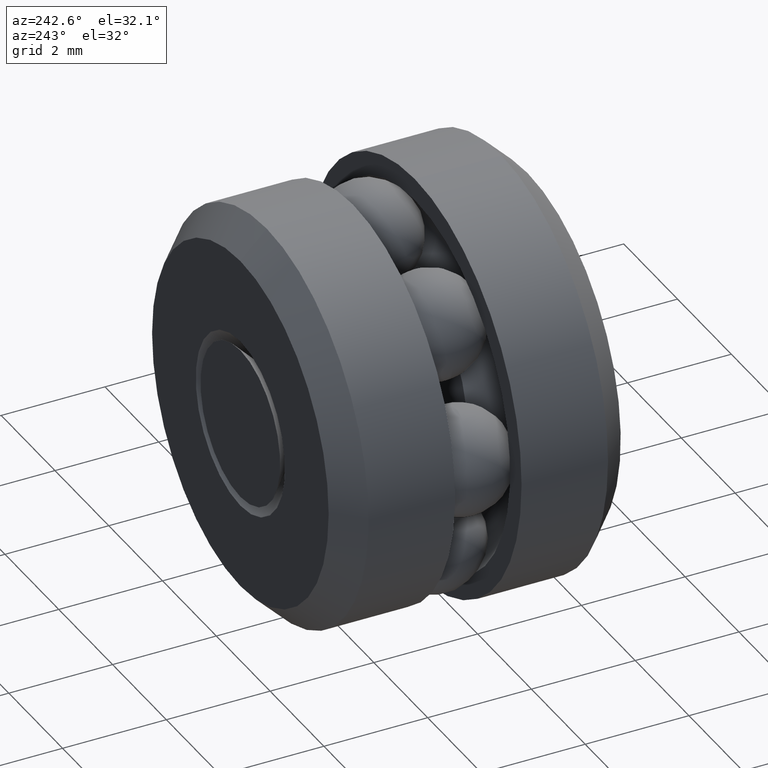
[diagram: clean part render]
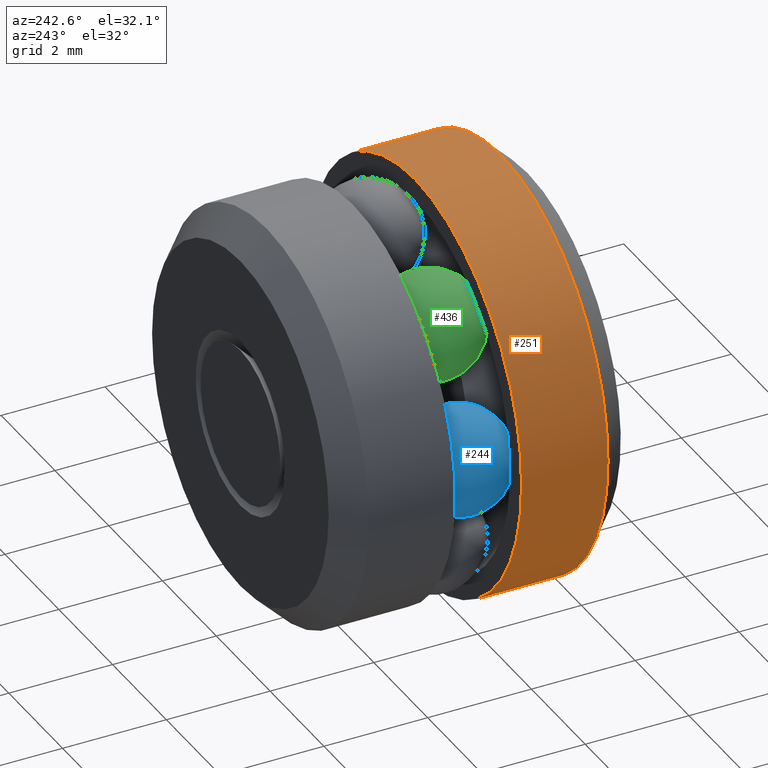
[diagram: same view with three faces highlighted in distinct colors, each labeled with its STEP entity id]
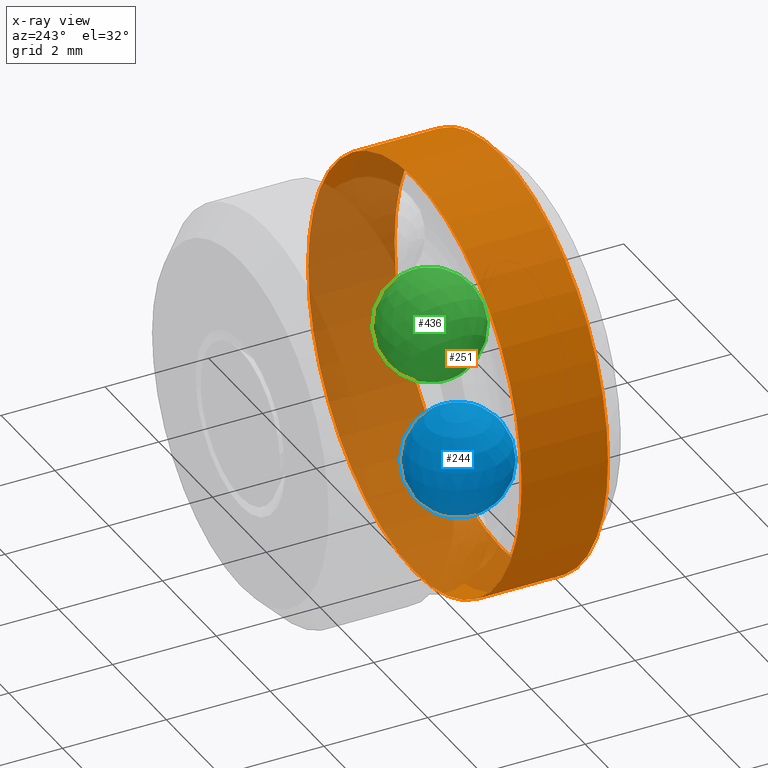
[diagram: x-ray of the same camera — body ghosted, the three highlighted faces saturated]
A machine part, auxiliary view with three faces highlighted in distinct colors.
The next image is the same camera in x-ray (body ghosted, the three faces saturated) — at least one of them is partly hidden behind the body in this view.
Their STEP definitions:

[orange] entity #251 — the highlighted cylindrical surface (bore or boss wall) has radius 3.9688 mm, axis along (-0, 1, -0).
#33 = ORIENTED_EDGE ( 'NONE', *, *, #284, .F. ) ;
#76 = CIRCLE ( 'NONE', #429, 0.1562500000000000000 ) ;
#77 = DIRECTION ( 'NONE',  ( -0.0000000000000000000, 1.000000000000000000, -0.0000000000000000000 ) ) ;
#83 = CARTESIAN_POINT ( 'NONE',  ( 0.0000000000000000000, 0.02000000000000018400, 0.1562500000000000000 ) ) ;
#86 = DIRECTION ( 'NONE',  ( 0.0000000000000000000, 0.0000000000000000000, 1.000000000000000000 ) ) ;
#89 = CARTESIAN_POINT ( 'NONE',  ( 0.0000000000000000000, 0.0000000000000000000, 0.0000000000000000000 ) ) ;
#117 = FACE_OUTER_BOUND ( 'NONE', #122, .T. ) ;
#118 = CARTESIAN_POINT ( 'NONE',  ( 0.0000000000000000000, 0.08559999999999998200, 0.1562500000000000000 ) ) ;
#122 = EDGE_LOOP ( 'NONE', ( #33 ) ) ;
#163 = CARTESIAN_POINT ( 'NONE',  ( 0.0000000000000000000, 0.02000000000000018400, 0.0000000000000000000 ) ) ;
#169 = EDGE_LOOP ( 'NONE', ( #276 ) ) ;
#226 = VERTEX_POINT ( 'NONE', #83 ) ;
#250 = DIRECTION ( 'NONE',  ( 0.0000000000000000000, 0.0000000000000000000, 1.000000000000000000 ) ) ;
#251 = ADVANCED_FACE ( 'NONE', ( #416, #117 ), #316, .T. ) ;
#255 = DIRECTION ( 'NONE',  ( -0.0000000000000000000, 1.000000000000000000, -0.0000000000000000000 ) ) ;
#276 = ORIENTED_EDGE ( 'NONE', *, *, #512, .T. ) ;
#284 = EDGE_CURVE ( 'NONE', #524, #524, #296, .T. ) ;
#296 = CIRCLE ( 'NONE', #343, 0.1562500000000000000 ) ;
#309 = DIRECTION ( 'NONE',  ( -0.0000000000000000000, 1.000000000000000000, -0.0000000000000000000 ) ) ;
#316 = CYLINDRICAL_SURFACE ( 'NONE', #354, 0.1562500000000000000 ) ;
#343 = AXIS2_PLACEMENT_3D ( 'NONE', #448, #255, #86 ) ;
#354 = AXIS2_PLACEMENT_3D ( 'NONE', #89, #309, #250 ) ;
#416 = FACE_OUTER_BOUND ( 'NONE', #169, .T. ) ;
#429 = AXIS2_PLACEMENT_3D ( 'NONE', #163, #77, #467 ) ;
#448 = CARTESIAN_POINT ( 'NONE',  ( 0.0000000000000000000, 0.08559999999999998200, 0.0000000000000000000 ) ) ;
#467 = DIRECTION ( 'NONE',  ( 0.0000000000000000000, 0.0000000000000000000, 1.000000000000000000 ) ) ;
#512 = EDGE_CURVE ( 'NONE', #226, #226, #76, .T. ) ;
#524 = VERTEX_POINT ( 'NONE', #118 ) ;

[blue] entity #244 — the highlighted spherical surface has radius 0.9906 mm.
#244 = ADVANCED_FACE ( 'NONE', ( ), #266, .T. ) ;
#266 = SPHERICAL_SURFACE ( 'NONE', #420, 0.03900000000000000000 ) ;
#340 = DIRECTION ( 'NONE',  ( 1.000000000000000000, 0.0000000000000000000, 0.0000000000000000000 ) ) ;
#397 = DIRECTION ( 'NONE',  ( 0.0000000000000000000, 0.0000000000000000000, -1.000000000000000000 ) ) ;
#420 = AXIS2_PLACEMENT_3D ( 'NONE', #530, #397, #340 ) ;
#530 = CARTESIAN_POINT ( 'NONE',  ( -0.1082500000000000000, 0.1089999999999999900, 0.0000000000000000000 ) ) ;

[green] entity #436 — the highlighted spherical surface has radius 0.9906 mm.
#311 = SPHERICAL_SURFACE ( 'NONE', #538, 0.03900000000000000000 ) ;
#436 = ADVANCED_FACE ( 'NONE', ( ), #311, .T. ) ;
#465 = DIRECTION ( 'NONE',  ( -0.7818314824680309100, 0.0000000000000000000, -0.6234898018587321500 ) ) ;
#493 = CARTESIAN_POINT ( 'NONE',  ( -0.06749277105120775300, 0.1089999999999999900, 0.08463325797716436700 ) ) ;
#523 = DIRECTION ( 'NONE',  ( 0.6234898018587321500, 0.0000000000000000000, -0.7818314824680309100 ) ) ;
#538 = AXIS2_PLACEMENT_3D ( 'NONE', #493, #465, #523 ) ;